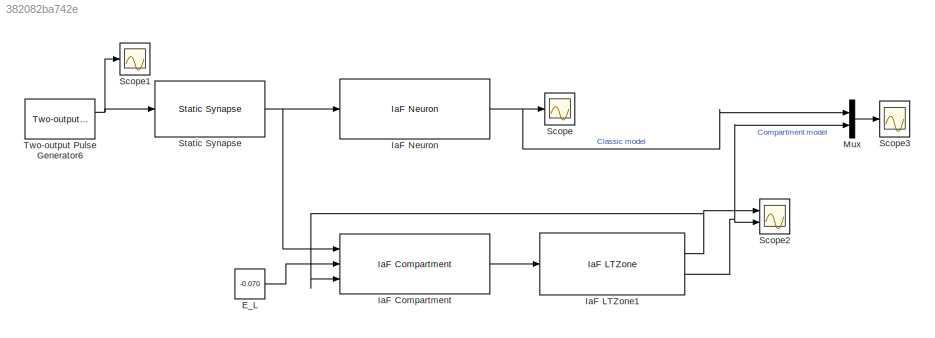
MODEL slx_382082ba742e
KIND model
CONFIG AbsTol = auto
CONFIG EnableMultiTasking = off
CONFIG FixedStep = auto
CONFIG MaxStep = auto
CONFIG MinStep = auto
CONFIG RelTol = 1e-3
CONFIG SampleTimeConstraint = Unconstrained
CONFIG SolverName = VariableStepAuto
CONFIG StartTime = 0.0
CONFIG StopTime = 0.4
BLOCK [Constant] E_L
  Value = -0.070
BLOCK [Reference] IaF Compartment  REF=NeuroModelerLibrary/Neuron Elements/IaF Compartment
  Ports = [3, 1]
  SourceBlock = NeuroModelerLibrary/Neuron Elements/IaF Compartment
BLOCK [Reference] IaF LTZone1  REF=NeuroModelerLibrary/Neuron Elements/IaF LTZone
  Ports = [1, 2]
  SourceBlock = NeuroModelerLibrary/Neuron Elements/IaF LTZone
BLOCK [Reference] IaF Neuron  REF=NeuroModelerLibrary/Classic Models/IaF Neuron
  Ports = [1, 1]
  SourceBlock = NeuroModelerLibrary/Classic Models/IaF Neuron
BLOCK [Mux] Mux
  DisplayOption = bar
  Inputs = 2
  Ports = [2, 1]
BLOCK [Scope] Scope
  Floating = off
  NumInputPorts = 1
  Ports = [1]
  ScopeSpecificationString = Simulink.scopes.TimeScopeBlockCfg('CurrentConfiguration', extmgr.ConfigurationSet(extmgr.Configuration('Core','General UI',true),extmgr.Configuration('Core','Source UI',true),extmgr.Configuration('Sources','WiredSimulink',true),extmgr.Configuration('Visuals','Time Domain',true),extmgr.Configuration('Tools','Plot Navigation',true),extmgr.Configuration('Tools','Measurements',true)),'Version','2020b'...<+1ch>
BLOCK [Scope] Scope1
  Floating = off
  NumInputPorts = 1
  Ports = [1]
  ScopeSpecificationString = Simulink.scopes.TimeScopeBlockCfg('CurrentConfiguration', extmgr.ConfigurationSet(extmgr.Configuration('Core','General UI',true),extmgr.Configuration('Core','Source UI',true),extmgr.Configuration('Sources','WiredSimulink',true,'DataLoggingVariableName','ScopeData1'),extmgr.Configuration('Visuals','Time Domain',true,'SerializedDisplays',{struct('MinYLimReal','-0.125','MaxYLimReal','1.125','YLabelRe...<+1476ch>
BLOCK [Scope] Scope2
  Floating = off
  NumInputPorts = 2
  Ports = [2]
  ScopeSpecificationString = Simulink.scopes.TimeScopeBlockCfg('CurrentConfiguration', extmgr.ConfigurationSet(extmgr.Configuration('Core','General UI',true),extmgr.Configuration('Core','Source UI',true),extmgr.Configuration('Sources','WiredSimulink',true,'DataLoggingVariableName','ScopeData1'),extmgr.Configuration('Visuals','Time Domain',true,'SerializedDisplays',{struct('MinYLimReal','-0.10562','MaxYLimReal','-0.04938','YLa...<+2013ch>
BLOCK [Scope] Scope3
  Floating = off
  NumInputPorts = 1
  Ports = [1]
  ScopeSpecificationString = Simulink.scopes.TimeScopeBlockCfg('CurrentConfiguration', extmgr.ConfigurationSet(extmgr.Configuration('Core','General UI',true,'FigureColor',[1 1 1]),extmgr.Configuration('Core','Source UI',true),extmgr.Configuration('Sources','WiredSimulink',true,'DataLoggingVariableName','ScopeData1'),extmgr.Configuration('Visuals','Time Domain',true,'SerializedDisplays',{struct('MinYLimReal','-0.10562','MaxYLi...<+1785ch>
BLOCK [Reference] Static Synapse  REF=NeuroModelerLibrary/Classic Models/Static Synapse
  Ports = [1, 1]
  SourceBlock = NeuroModelerLibrary/Classic Models/Static Synapse
BLOCK [Reference] Two-output Pulse Generator6  REF=NeuroModelerLibrary/Support/Two-output
Pulse Generator
  Ports = [0, 2]
  SourceBlock = NeuroModelerLibrary/Support/Two-output\nPulse Generator
LINE E_L:1 -> IaF Compartment:2
LINE IaF Compartment:1 -> IaF LTZone1:1
NET IaF LTZone1:1 -> IaF Compartment:3, Scope2:1
NET IaF LTZone1:2 -> Mux:2, Scope2:2
NET IaF Neuron:1 -> Mux:1, Scope:1
LINE Mux:1 -> Scope3:1
NET Static Synapse:1 -> IaF Compartment:1, IaF Neuron:1
NET Two-output Pulse Generator6:1 -> Scope1:1, Static Synapse:1
note: NET lines group one-source signal fan-out (src -> all destinations, sorted); 1:1 wires keep LINE
